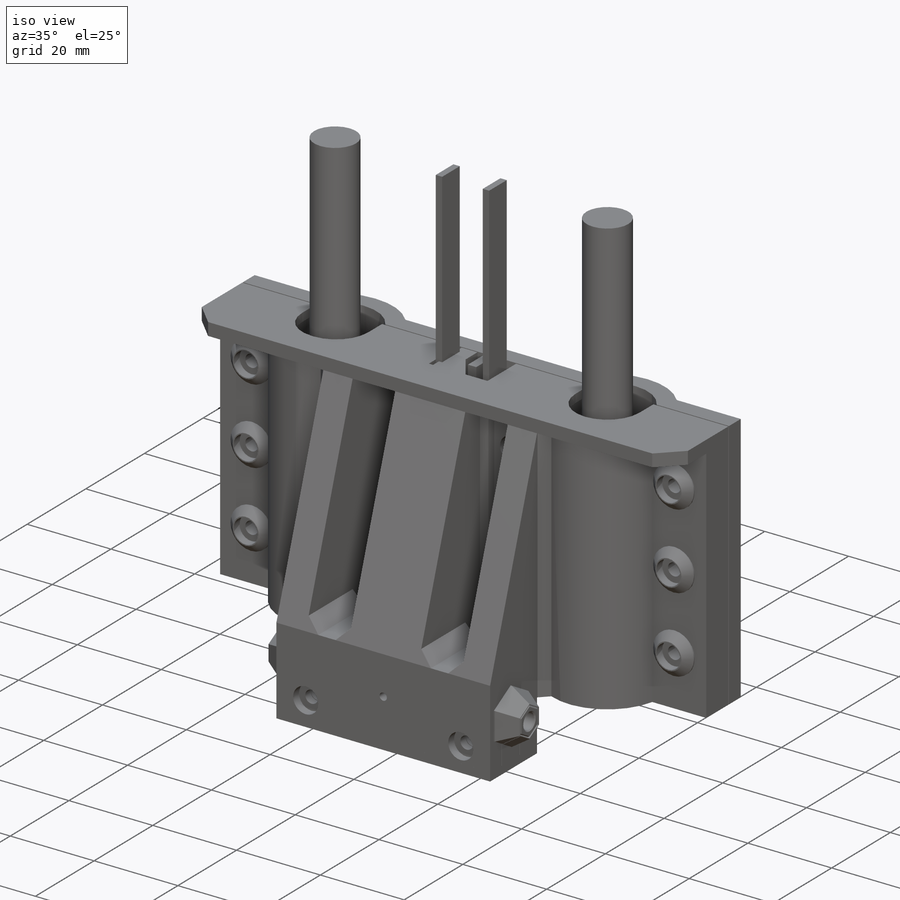
[diagram: iso view]
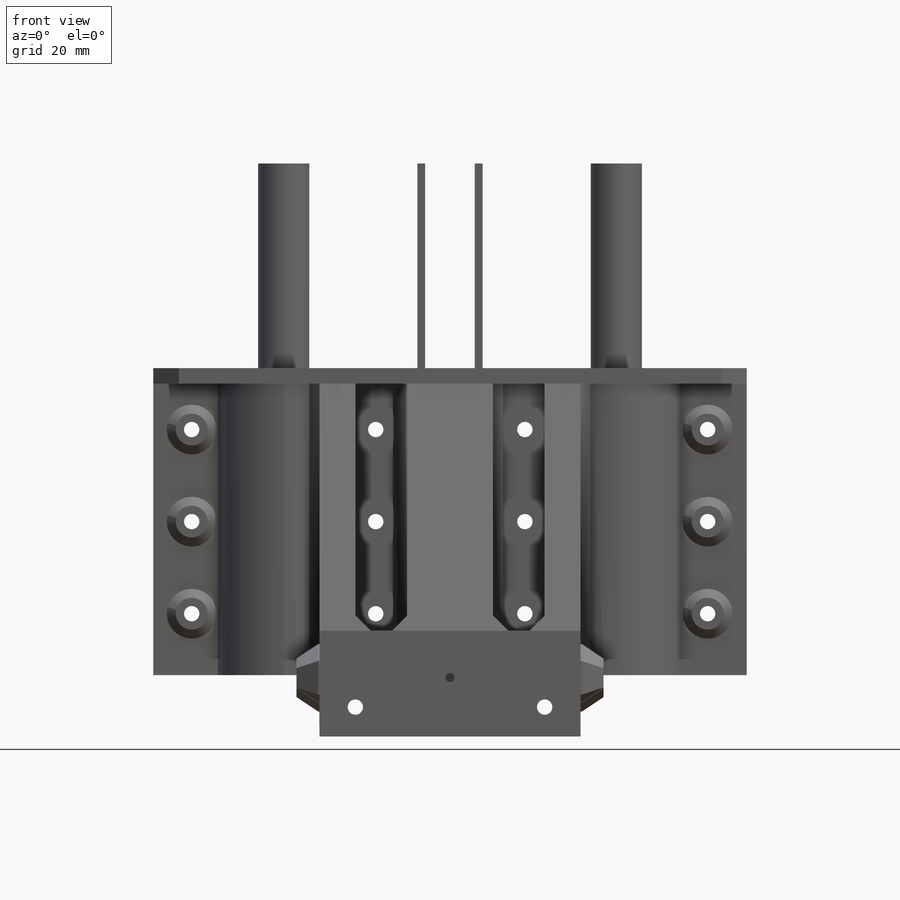
[diagram: front view]
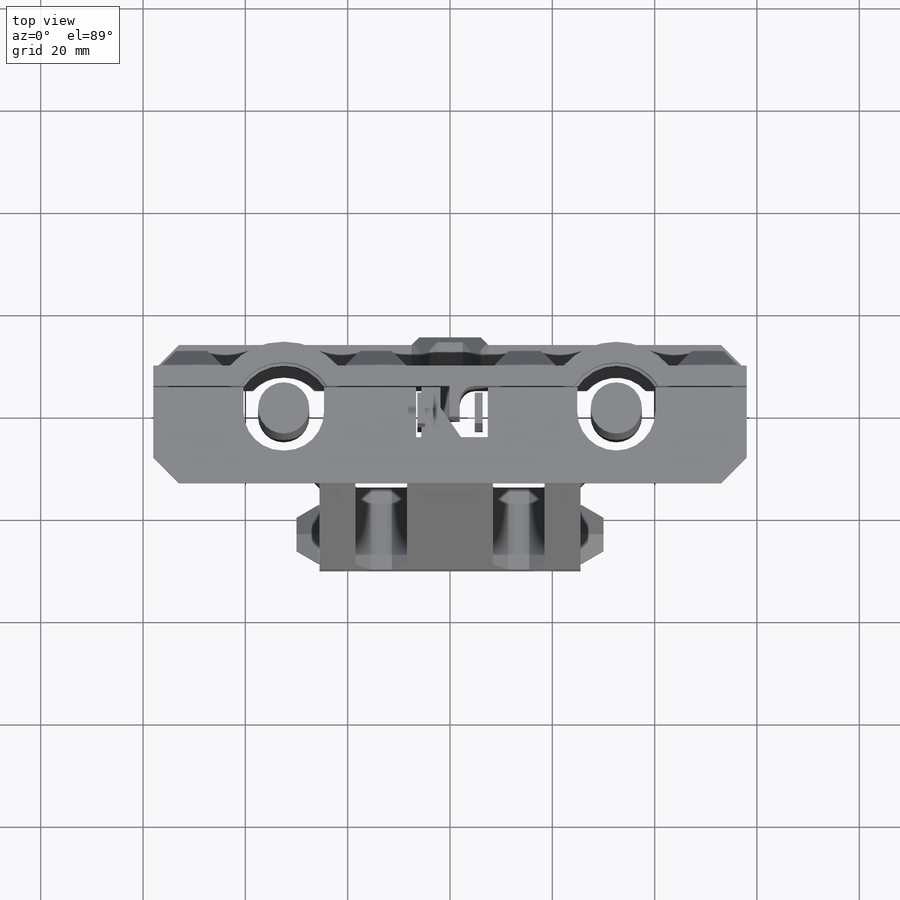
[diagram: top view]
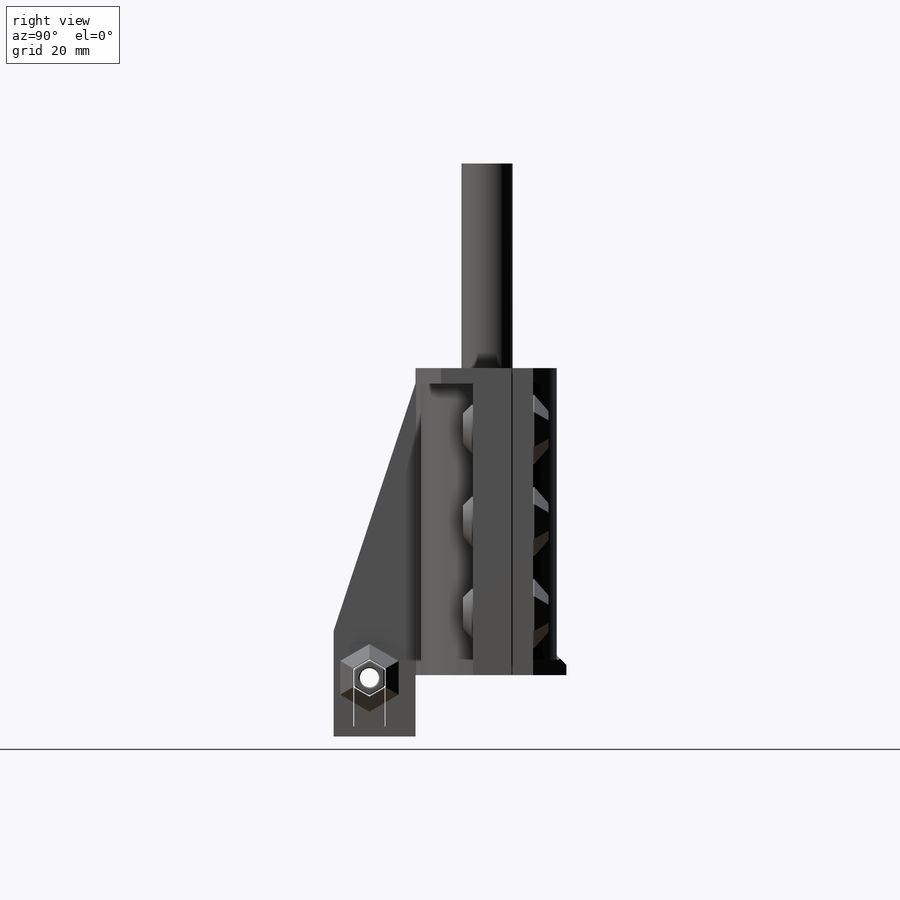
[diagram: right view]
SOLIDWORKS PART (.sldprt)
format: sldprt  version: not decoded by parser v0  size: 4,576,256 bytes
history: native  units: mm
features: sketch x58, extrude x30, cut_extrude x22, chamfer x18, surface_op x4, mirror x3, plane x2, pattern_linear x2, material x1, boolean_combine x1, fillet x1 (+24 scaffold rows collapsed; 12 parser-record rows omitted)
feature tree (178):
  scaffold x24  (default folders/planes/origin — collapsed)
  material  "Material <not specified>"
  sketch  "Sketch1"  dims[D2=10.0mm D1=65.0mm]
  extrude  "Boss-Extrude1"  Depth=100mm
  sketch  "Sketch2"  dims[D1=6.0mm D2=1.52mm D3=9.7mm]
  extrude  "Boss-Extrude2"  Depth=100mm
  sketch  "Sketch3"  dims[D1=28.0mm D2=25.5mm D3=116.0mm]
  extrude  "Boss-Extrude3"  Depth=60mm
  sketch  "Sketch4"  dims[D1=5.0mm D2=0.25mm]
  cut_extrude  "Cut-Extrude1"  [1 undecoded]
  sketch  "Sketch6"  dims[D1=19.25mm D4=0.5mm D2=0.0mm D3=0.0mm]
  parser-record x12  (decoder bookkeeping rows leaked as tree rows — omitted from the tree; the rows remain in map.json)
  surface_op  "Surface-Extrude1"
  sketch  "Sketch28"  dims[c1.D1=100.0mm c2.D1=90.0deg c3.D1=44.0mm c3.D2=1.3mm c3.D3=9.0mm c3.D4=~1.548246mm c4.D4=45.0deg c4.D5=0.25mm c4.D6=0.6mm c4.D3=9.0mm c4.D1=4.0mm c5.D1=4.0mm c6.D1=360.0deg]
  plane  "Plane1"
  sketch  "Sketch29"  dims[c1.D1=22.0mm c1.D2=1.3mm c1.D3=9.0mm c2.D1=44.0mm c2.D4=0.25mm c2.D5=0.6mm c2.D6=~1.053278mm c3.D6=45.0deg]
  surface_op  "Surface-Extrude3"
  plane  "Plane4"
  sketch  "Sketch32"  dims[D1=180.0deg]
  mirror  "Mirror4"
  sketch  "Sketch5"  dims[D1=3.0mm]
  cut_extrude  "Cut-Extrude2"  [1 undecoded]
  sketch  "Sketch9"  dims[c1.D3=3.0mm c1.D1=16.5mm c1.D2=8.25mm c2.D1=16.5mm c2.D2=12.0mm c3.D1=30.0mm c3.D4=35.9794mm]
  cut_extrude  "Cut-Extrude5"  [1 undecoded]
  sketch  "Sketch10"  dims[c1.D1=5.7mm c1.D2=3.0mm c1.D3=11.0mm c1.D4=~14.006475mm c2.D2=3.0mm c2.D3=3.0mm]
  extrude  "Boss-Extrude4"  Depth=3mm
  chamfer  "Chamfer6"  Distance=2.75mm Angle=45deg
  sketch  "Sketch11"  dims[D1=0.25mm D2=0.0mm D3=0.0mm D4=0.0mm D5=0.0mm D6=0.0mm D7=0.0mm D8=0.0mm D9=0.0mm D10=0.25mm D11=0.25mm]
  extrude  "Boss-Extrude5"  Depth=0.5mm
  chamfer  "Chamfer2"  Distance=0.25mm Angle=45deg
  sketch  "Sketch12"  dims[D1=2.0mm D2=2.0mm]
  extrude  "Boss-Extrude6"  Depth=2mm
  sketch  "Sketch61"  dims[D1=12.0mm D2=1.5mm]
  extrude  "Boss-Extrude26"  Depth=8mm
  chamfer  "Chamfer15"  Distance=6mm Angle=45deg
  sketch  "Sketch62"  dims[D1=2.0mm D2=2.0mm D3=0.0mm]
  cut_extrude  "Cut-Extrude18"  [1 undecoded]
  chamfer  "Chamfer17"  Distance=1.5mm Angle=45deg
  chamfer  "Chamfer18"  Distance=1.5mm Angle=45deg
  sketch  "Sketch33"  dims[D1=0.0mm D2=3.3mm D3=3.3mm]
  surface_op  "Surface-Extrude4"
  sketch  "Sketch21"  dims[D1=6.0mm D2=4.0mm]
  surface_op  "Surface-Extrude2"
  sketch  "Sketch7"  dims[D1=3.0mm]
  cut_extrude  "Cut-Extrude3"  [1 undecoded]
  sketch  "Sketch8"  dims[D1=2.0mm D2=0.25mm D3=1.0mm]
  cut_extrude  "Cut-Extrude4"  [1 undecoded]
  sketch  "Sketch13"  dims[c1.D2=4.0mm c1.D3=5.0mm c1.D6=6.0mm c1.D7=3.0mm c1.D1=20.0mm c2.D3=5.0mm c2.D4=25.0mm c2.D1=0.0mm c3.D4=25.0mm c3.D5=14.0mm c3.D6=~37.46297mm c4.D6=~30.47534deg c5.D6=~32.287368mm c5.D8=6.0mm c5.D9=3.0mm c5.D10=5.0mm c5.D11=7.5mm c5.D1=23.0mm c5.D4=58.0mm c6.D4=~22.629221deg c7.D4=10.0mm]
  extrude  "Boss-Extrude7"  [1 undecoded]
  sketch  "Sketch23"  dims[D1=0.0mm]
  extrude  "Boss-Extrude15"  Depth=40mm
  sketch  "Sketch14"  dims[c1.D1=8.0mm c1.D2=3.75mm c1.D3=~1.238865mm c1.D4=~18.82475mm c2.D4=45.0deg c2.D5=25.0mm c3.D5=45.0deg c3.D6=6.0mm c3.D7=~1.238865mm c3.D3=~1.238865mm c4.D7=4.5mm c4.D8=70.0mm c4.D3=~18.836164mm c4.D1=6.0mm c5.D3=~5.522491mm c6.D3=~46.411545deg c7.D3=~5.522491mm c8.D3=~46.411545deg c9.D3=4.75mm c9.D4=4.5mm c9.D5=1.0mm c9.D6=1.0mm c9.D7=~7.501817mm c10.D5=3.0mm c10.D1=70.0mm c10.D2=2.75mm c10.D3=2.75mm c11.D3=~52.741946deg c12.D3=4.0mm c12.D4=2.75mm c13.D4=45.0deg c13.D5=7.0mm c13.D6=3.5mm c13.D7=0.5mm c13.D8=~3.860389mm c14.D8=45.0deg c14.D2=9.5mm]
  cut_extrude  "Cut-Extrude6"  [1 undecoded]
  sketch  "Sketch49"  dims[D1=6.25mm]
  cut_extrude  "Cut-Extrude16"  Depth=30mm
  sketch  "Sketch63"
  cut_extrude  "Cut-Extrude19"  [1 undecoded]
  mirror  "Mirror6"
  boolean_combine  "Combine6"
  chamfer  "Chamfer10"  Distance=3mm Angle=45deg
  sketch  "Sketch68"  dims[D1=0.0mm]
  extrude  "Boss-Extrude28"  Depth=8mm
  sketch  "Sketch69"  dims[D2=3.0mm D3=~3.391561mm D1=0.0mm]
  extrude  "Boss-Extrude29"  [1 undecoded]
  sketch  "Sketch77"  dims[c1.D1=~18.791978mm c2.D1=45.0deg]
  extrude  "Boss-Extrude33"  Depth=2mm
  sketch  "Sketch78"  dims[D1=0.0mm]
  extrude  "Boss-Extrude35"  Depth=2mm
  chamfer  "Chamfer19"  Distance=3mm Angle=45deg
  sketch  "Sketch81"  dims[D1=0.0mm D2=0.0mm]
  extrude  "Boss-Extrude38"  [1 undecoded]
  sketch  "Sketch71"  dims[D1=0.125mm D2=0.125mm D3=2.0mm]
  extrude  "Boss-Extrude31"  [1 undecoded]
  sketch  "Sketch70"  dims[D1=6.0mm D3=3.75mm D2=0.125mm]
  extrude  "Boss-Extrude30"  Depth=60mm
  chamfer  "Chamfer21"  Distance=0.25mm
  sketch  "Sketch79"  dims[c1.D1=~2.388308mm c2.D1=~105.103155deg c3.D1=3.0mm]
  extrude  "Boss-Extrude36"  Depth=4.5mm
  sketch  "Sketch80"  dims[D1=0.0mm]
  extrude  "Boss-Extrude37"  Depth=4.5mm
  chamfer  "Chamfer23"  Distance=4.25mm Angle=30deg
  sketch  "Sketch83"  dims[D1=3.0mm]
  extrude  "Boss-Extrude39"  [1 undecoded]
  chamfer  "Chamfer24"  Distance=4.25mm Angle=30deg
  sketch  "Sketch85"
  extrude  "Boss-Extrude40"  [1 undecoded]
  chamfer  "Chamfer25"  Distance=4.25mm Angle=30deg
  sketch  "Sketch72"  dims[D1=3.0mm D2=3.75mm D3=7.0mm]
  cut_extrude  "Cut-Extrude20"  Depth=60mm
  sketch  "Sketch73"  dims[D1=5.6mm]
  cut_extrude  "Cut-Extrude21"  Depth=3mm
  sketch  "Sketch74"  dims[D1=6.0mm]
  cut_extrude  "Cut-Extrude22"  Depth=2mm
  sketch  "Sketch75"  dims[D1=0.0mm D2=0.25mm]
  extrude  "Boss-Extrude32"  Depth=0.5mm
  chamfer  "Chamfer20"  Distance=0.25mm Angle=45deg
  sketch  "Sketch76"  dims[D1=1.75mm]
  cut_extrude  "Cut-Extrude23"  [1 undecoded]
  sketch  "Sketch26"  dims[c1.D1=3.0mm c1.D2=~2.197378mm c2.D2=90.0deg c2.D3=0.75mm c2.D4=3.0mm c2.D5=0.75mm c2.D6=0.75mm c3.D4=3.0mm]
  cut_extrude  "Cut-Extrude9"  [1 undecoded]
  sketch  "Sketch27"  dims[D1=0.3mm D2=3.0mm]
  cut_extrude  "Cut-Extrude10"  [1 undecoded]
  sketch  "Sketch34"  dims[c1.D1=9.75mm c2.D1=10.0deg]
  cut_extrude  "Cut-Extrude11"  Depth=3mm
  sketch  "Sketch86"  dims[D1=0.75mm]
  cut_extrude  "Cut-Extrude25"  [1 undecoded]
  sketch  "Sketch35"  dims[D1=1.0mm D2=3.0mm D3=0.15mm D4=0.76mm D5=0.35mm]
  extrude  "Boss-Extrude11"  [1 undecoded]
  mirror  "Mirror5"
  pattern_linear  "LPattern1"  Count1=30 Count2=1 Spacing1=2mm Spacing2=10mm
  pattern_linear  "Combine2"  [2 undecoded]
  chamfer  "Chamfer3"  Distance=4mm Angle=55deg
  sketch  "Sketch36"  dims[D1=2.0mm D2=30.0mm D3=15.0mm D4=10.0mm]
  cut_extrude  "Cut-Extrude12"  [1 undecoded]
  chamfer  "Chamfer4"  Distance=4mm Angle=45deg
  sketch  "Sketch52"  dims[D1=7.5mm D2=7.5mm]
  extrude  "Boss-Extrude19"  [1 undecoded]
  sketch  "Sketch37"
  cut_extrude  "Cut-Extrude13"  [1 undecoded]
  sketch  "Sketch39"  dims[D1=5.75mm D2=2.0mm]
  extrude  "Boss-Extrude14"  Depth=2mm
  chamfer  "Chamfer5"  Distance=1.75mm Angle=45deg
  sketch  "Sketch38"
  extrude  "Boss-Extrude13"  Depth=2mm
  sketch  "Sketch51"
  extrude  "Boss-Extrude18"  [1 undecoded]
  sketch  "Sketch40"  dims[D1=5.75mm]
  cut_extrude  "Cut-Extrude14"  Depth=2mm
  sketch  "Sketch53"  dims[c1.D3=~7.625826mm c1.D1=2.0mm c1.D2=2.0mm c2.D3=~0.001168mm c2.D1=2.0mm c2.D2=2.0mm]
  extrude  "Boss-Extrude20"  Depth=2mm
  chamfer  "Chamfer11"  Distance=5mm Angle=45deg
  chamfer  "Chamfer12"  Distance=5mm Angle=45deg
  sketch  "Sketch54"  dims[D3=0.5mm D4=2.0mm D5=0.5mm D6=0.5mm D1=0.0mm D2=0.25mm]
  extrude  "Boss-Extrude21"  Depth=6mm
  chamfer  "Chamfer13"  Distance=3mm Angle=30deg
  fillet  "Fillet2"  Radius=3mm
  sketch  "Sketch55"  dims[c1.D3=0.15mm c1.D4=0.15mm c1.D2=0.5mm c1.D1=0.0mm c2.D2=0.15mm c2.D1=0.0mm c3.D2=0.2mm c3.D3=20.0mm]
  extrude  "Boss-Extrude22"  Depth=1.5mm
  sketch  "Sketch56"  dims[D1=0.0mm]
  extrude  "Boss-Extrude23"  Depth=0.5mm
  sketch  "Sketch58"  dims[D1=5.75mm]
  cut_extrude  "Cut-Extrude17"  Depth=2mm
  sketch  "Sketch82"
  cut_extrude  "Cut-Extrude24"  [1 undecoded]
decode coverage: 100 of 139 modeling features carry decoded parameters
note: ~ marks probable driven/reference dimensions
note: 26 parameter values undecoded
summary: no parameter record found for 24 features
note: suppression state not decoded; provenance and decode notes live in map.json
